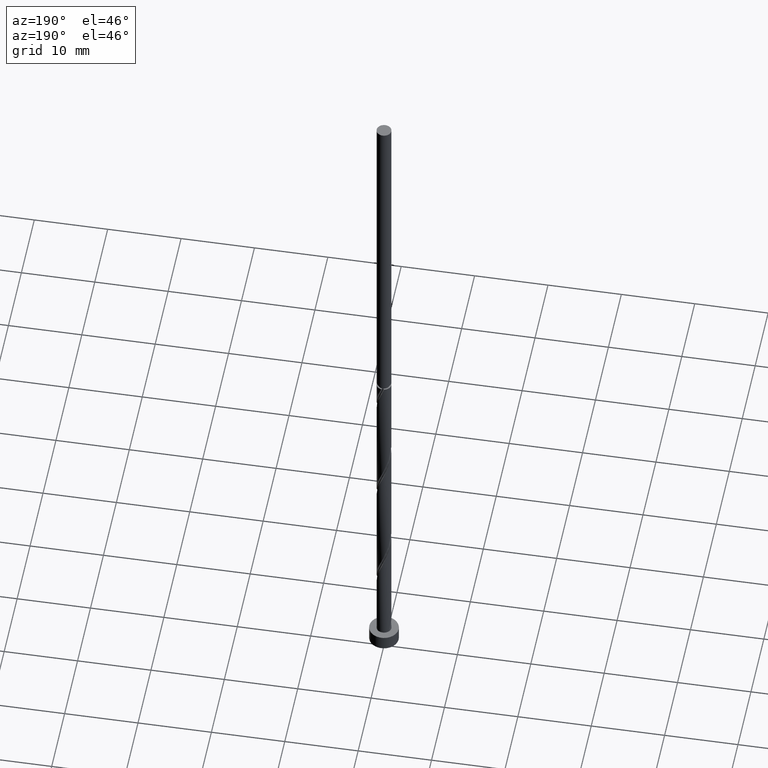
[diagram: clean part render]
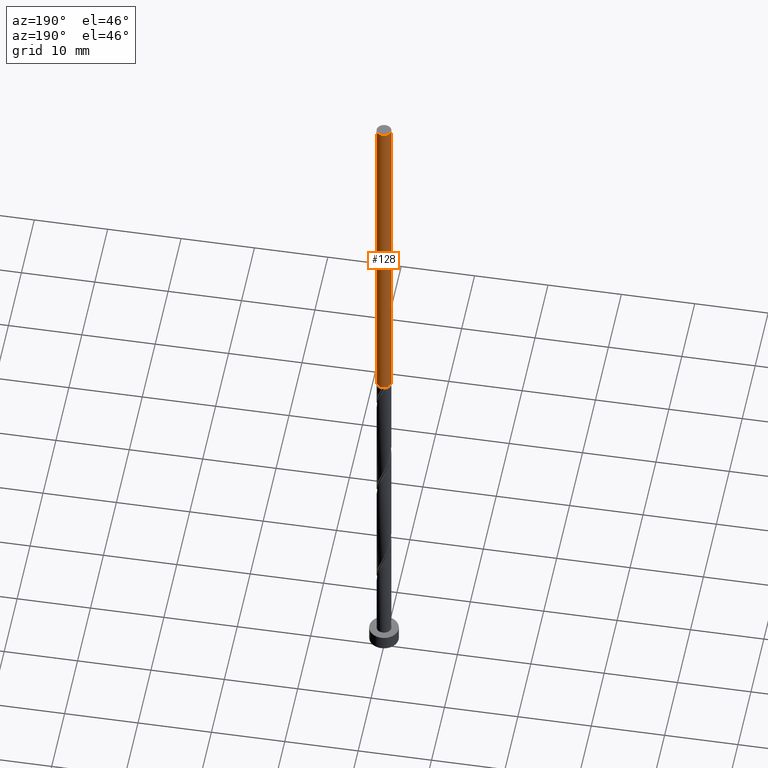
[diagram: same view with one face highlighted and labeled with its STEP entity id]
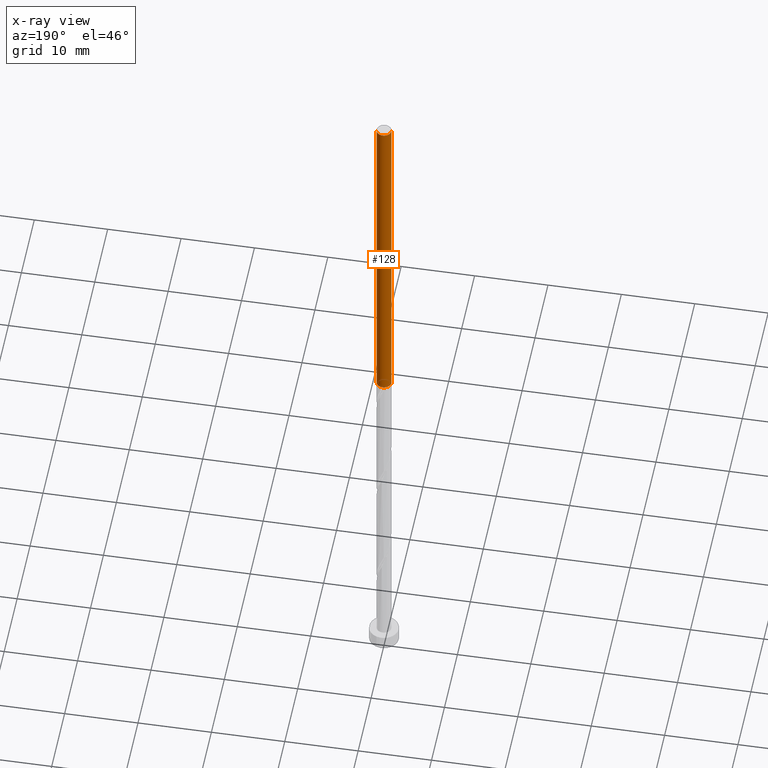
[diagram: x-ray of the same camera — body ghosted, the highlighted face saturated]
A machine part, auxiliary view. The second image highlights one B-rep face of the part: STEP entity #128.
The next image is the same camera in x-ray: the body ghosted, the highlighted face saturated — about 0% of this face is hidden behind the body in this view.
In plain terms, the highlighted cylindrical surface (edge-blend (fillet) strip) has radius 1 mm, axis along (-0, -0, -1).
Its self-contained STEP definition (entity closure, byte-faithful):
#103 = CARTESIAN_POINT ( 'NONE',  ( 0.000000000000000000, 0.000000000000000000, 98.00000000000000000 ) ) ;
#113 = DIRECTION ( 'NONE',  ( 1.000000000000000000, 0.000000000000000000, 0.000000000000000000 ) ) ;
#128 = ADVANCED_FACE ( 'NONE', ( #935 ), #636, .T. ) ;
#134 = CARTESIAN_POINT ( 'NONE',  ( -1.000000000000000000, 0.000000000000000000, 98.00000000000000000 ) ) ;
#185 = AXIS2_PLACEMENT_3D ( 'NONE', #1606, #924, #1203 ) ;
#197 = EDGE_LOOP ( 'NONE', ( #1701, #1009, #1040, #1752 ) ) ;
#261 = VERTEX_POINT ( 'NONE', #524 ) ;
#309 = VECTOR ( 'NONE', #950, 1000.000000000000000 ) ;
#334 = CARTESIAN_POINT ( 'NONE',  ( -1.000000000000005773, 0.000000000000000000, 49.34464432268620016 ) ) ;
#524 = CARTESIAN_POINT ( 'NONE',  ( 1.000000000000000000, 1.224646799147353207E-16, 98.00000000000000000 ) ) ;
#624 = VERTEX_POINT ( 'NONE', #1033 ) ;
#636 = CYLINDRICAL_SURFACE ( 'NONE', #185, 1.000000000000000000 ) ;
#644 = EDGE_CURVE ( 'NONE', #667, #624, #1408, .T. ) ;
#667 = VERTEX_POINT ( 'NONE', #334 ) ;
#714 = EDGE_CURVE ( 'NONE', #1270, #667, #1089, .T. ) ;
#715 = CARTESIAN_POINT ( 'NONE',  ( -1.000000000000000000, 0.000000000000000000, 98.00000000000000000 ) ) ;
#891 = AXIS2_PLACEMENT_3D ( 'NONE', #103, #1648, #113 ) ;
#924 = DIRECTION ( 'NONE',  ( -0.000000000000000000, -0.000000000000000000, -1.000000000000000000 ) ) ;
#935 = FACE_OUTER_BOUND ( 'NONE', #197, .T. ) ;
#950 = DIRECTION ( 'NONE',  ( -0.000000000000000000, -0.000000000000000000, -1.000000000000000000 ) ) ;
#960 = VECTOR ( 'NONE', #1548, 1000.000000000000000 ) ;
#1009 = ORIENTED_EDGE ( 'NONE', *, *, #1253, .T. ) ;
#1033 = CARTESIAN_POINT ( 'NONE',  ( 1.000000000000005773, 1.224646799147360110E-16, 49.34464432268620016 ) ) ;
#1040 = ORIENTED_EDGE ( 'NONE', *, *, #644, .F. ) ;
#1089 = LINE ( 'NONE', #134, #309 ) ;
#1113 = EDGE_CURVE ( 'NONE', #261, #1270, #1462, .T. ) ;
#1196 = CARTESIAN_POINT ( 'NONE',  ( 0.000000000000000000, 0.000000000000000000, 49.34464432268620016 ) ) ;
#1203 = DIRECTION ( 'NONE',  ( -1.000000000000000000, 0.000000000000000000, 0.000000000000000000 ) ) ;
#1253 = EDGE_CURVE ( 'NONE', #261, #624, #1417, .T. ) ;
#1270 = VERTEX_POINT ( 'NONE', #715 ) ;
#1393 = CARTESIAN_POINT ( 'NONE',  ( 1.000000000000000000, 1.224646799147353207E-16, 98.00000000000000000 ) ) ;
#1408 = CIRCLE ( 'NONE', #1724, 1.000000000000005773 ) ;
#1417 = LINE ( 'NONE', #1393, #960 ) ;
#1462 = CIRCLE ( 'NONE', #891, 1.000000000000000000 ) ;
#1467 = DIRECTION ( 'NONE',  ( -0.000000000000000000, -0.000000000000000000, -1.000000000000000000 ) ) ;
#1548 = DIRECTION ( 'NONE',  ( -0.000000000000000000, -0.000000000000000000, -1.000000000000000000 ) ) ;
#1600 = DIRECTION ( 'NONE',  ( -1.000000000000000000, 0.000000000000000000, 0.000000000000000000 ) ) ;
#1606 = CARTESIAN_POINT ( 'NONE',  ( 0.000000000000000000, 0.000000000000000000, 98.00000000000000000 ) ) ;
#1648 = DIRECTION ( 'NONE',  ( 0.000000000000000000, 0.000000000000000000, 1.000000000000000000 ) ) ;
#1701 = ORIENTED_EDGE ( 'NONE', *, *, #1113, .F. ) ;
#1724 = AXIS2_PLACEMENT_3D ( 'NONE', #1196, #1467, #1600 ) ;
#1752 = ORIENTED_EDGE ( 'NONE', *, *, #714, .F. ) ;